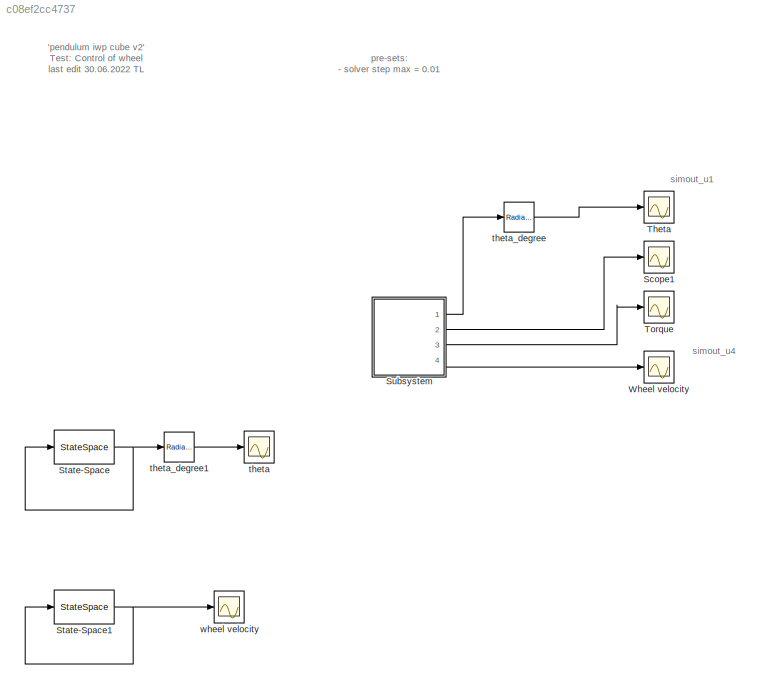
MODEL slx_c08ef2cc4737
KIND model
CONFIG AbsTol = auto
CONFIG EnableMultiTasking = on
CONFIG FixedStep = auto
CONFIG MaxStep = 0.01
CONFIG MinStep = auto
CONFIG RelTol = 1e-3
CONFIG SampleTimeConstraint = Unconstrained
CONFIG SolverName = VariableStepAuto
CONFIG StartTime = 0.0
CONFIG StopTime = 10
BLOCK [Scope] Scope1
  Commented = on
  Floating = off
  NumInputPorts = 1
  Ports = [1]
  ScopeSpecificationString = Simulink.scopes.TimeScopeBlockCfg('CurrentConfiguration', extmgr.ConfigurationSet(extmgr.Configuration('Core','General UI',true),extmgr.Configuration('Core','Source UI',true),extmgr.Configuration('Sources','WiredSimulink',true,'DataLoggingVariableName','ScopeData2'),extmgr.Configuration('Visuals','Time Domain',true,'SerializedDisplays',{struct('MinYLimReal','-0.18412','MaxYLimReal','0.16929','YLab...<+1396ch>
BLOCK [StateSpace] State-Space
  A = A-B*K
  B = B
  C = C1
  D = D
  InitialCondition = x0
  Ports = [1, 1]
BLOCK [StateSpace] State-Space1
  A = A-B*K
  B = B
  C = C2
  D = D
  InitialCondition = x0
  Ports = [1, 1]
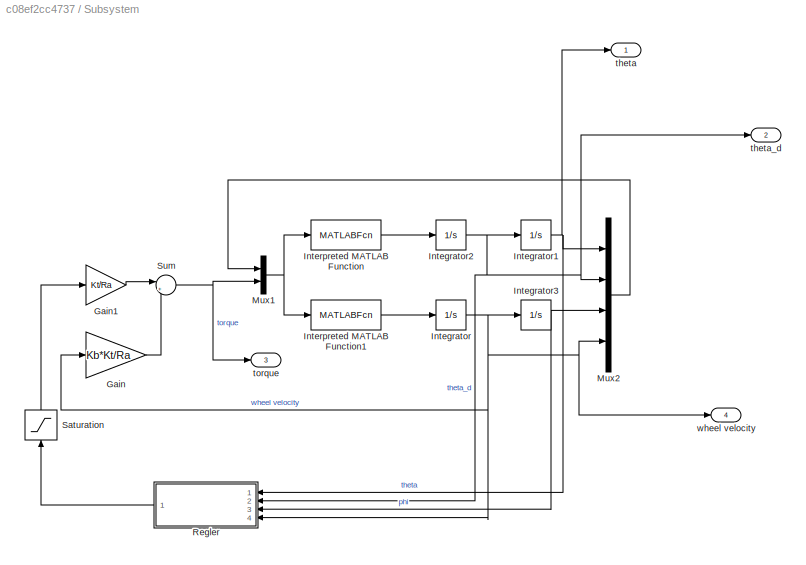
BLOCK [SubSystem] Subsystem
  Commented = on
  Ports = [0, 4]
  RequestExecContextInheritance = off
BLOCK [Gain] Subsystem/Gain
  Gain = Kb*Kt/Ra
BLOCK [Gain] Subsystem/Gain1
  Gain = Kt/Ra
BLOCK [Integrator] Subsystem/Integrator
  Ports = [1, 1]
BLOCK [Integrator] Subsystem/Integrator1
  InitialCondition = theta_0
  Ports = [1, 1]
BLOCK [Integrator] Subsystem/Integrator2
  Ports = [1, 1]
BLOCK [Integrator] Subsystem/Integrator3
  Ports = [1, 1]
BLOCK [MATLABFcn] Subsystem/Interpreted MATLAB Function
  MATLABFcn = (b*g*sin(u(1))-c1*u(2)+c2*u(4)-u(5))/(a-J2)
  NameLocation = top
  Output1D = off
  Ports = [1, 1]
BLOCK [MATLABFcn] Subsystem/Interpreted MATLAB Function1
  MATLABFcn = (a*u(5)/J2+c1*u(2)-b*g*sin(u(1))-a*c2*u(4)/J2)/(a-J2)
  NameLocation = top
  Output1D = off
  Ports = [1, 1]
BLOCK [Mux] Subsystem/Mux1
  DisplayOption = bar
  Inputs = 2
  Ports = [2, 1]
BLOCK [Mux] Subsystem/Mux2
  DisplayOption = bar
  Ports = [4, 1]
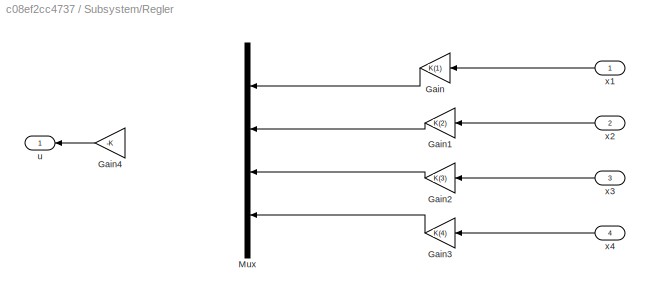
BLOCK [SubSystem] Subsystem/Regler
  NameLocation = top
  Ports = [4, 1]
  RequestExecContextInheritance = off
BLOCK [Gain] Subsystem/Regler/Gain
  Gain = K(1)
  NameLocation = top
BLOCK [Gain] Subsystem/Regler/Gain1
  Gain = K(2)
  NameLocation = top
BLOCK [Gain] Subsystem/Regler/Gain2
  Gain = K(3)
  NameLocation = top
BLOCK [Gain] Subsystem/Regler/Gain3
  Gain = K(4)
  NameLocation = top
BLOCK [Gain] Subsystem/Regler/Gain4
  Gain = -K
  Multiplication = Matrix(K*u)
  NameLocation = top
BLOCK [Mux] Subsystem/Regler/Mux
  DisplayOption = bar
  Ports = [4, 1]
BLOCK [Outport] Subsystem/Regler/u
  NameLocation = top
BLOCK [Inport] Subsystem/Regler/x1
  NameLocation = top
BLOCK [Inport] Subsystem/Regler/x2
  NameLocation = top
  Port = 2
BLOCK [Inport] Subsystem/Regler/x3
  NameLocation = top
  Port = 3
BLOCK [Inport] Subsystem/Regler/x4
  NameLocation = top
  Port = 4
BLOCK [Saturate] Subsystem/Saturation
  LowerLimit = -30
  NameLocation = right
  UpperLimit = 30
BLOCK [Sum] Subsystem/Sum
  Inputs = |+-
  Ports = [2, 1]
BLOCK [Outport] Subsystem/theta
BLOCK [Outport] Subsystem/theta_d
  Port = 2
BLOCK [Outport] Subsystem/torque
  Port = 3
BLOCK [Outport] Subsystem/wheel velocity
  Port = 4
BLOCK [Scope] Theta
  Commented = on
  Floating = off
  NumInputPorts = 1
  Ports = [1]
  ScopeSpecificationString = Simulink.scopes.TimeScopeBlockCfg('CurrentConfiguration', extmgr.ConfigurationSet(extmgr.Configuration('Core','General UI',true),extmgr.Configuration('Core','Source UI',true),extmgr.Configuration('Sources','WiredSimulink',true,'DataLoggingVariableName','simout_u1','DataLogging',true,'DataLoggingSaveFormat','StructureWithTime'),extmgr.Configuration('Visuals','Time Domain',true,'SerializedDisplays',...<+1500ch>
BLOCK [Scope] Torque
  Commented = on
  Floating = off
  NumInputPorts = 1
  Ports = [1]
  ScopeSpecificationString = Simulink.scopes.TimeScopeBlockCfg('CurrentConfiguration', extmgr.ConfigurationSet(extmgr.Configuration('Core','General UI',true),extmgr.Configuration('Core','Source UI',true),extmgr.Configuration('Sources','WiredSimulink',true,'DataLoggingVariableName','ScopeData3'),extmgr.Configuration('Visuals','Time Domain',true,'SerializedDisplays',{struct('MinYLimReal','-0.18368','MaxYLimReal','1.43001','YLab...<+1417ch>
BLOCK [Scope] Wheel velocity
  Commented = on
  Floating = off
  NumInputPorts = 1
  Ports = [1]
  ScopeSpecificationString = Simulink.scopes.TimeScopeBlockCfg('CurrentConfiguration', extmgr.ConfigurationSet(extmgr.Configuration('Core','General UI',true),extmgr.Configuration('Core','Source UI',true),extmgr.Configuration('Sources','WiredSimulink',true,'DataLoggingVariableName','simout_u4','DataLogging',true,'DataLoggingSaveFormat','StructureWithTime'),extmgr.Configuration('Visuals','Time Domain',true,'SerializedDisplays',...<+1468ch>
BLOCK [Scope] theta
  Floating = off
  NumInputPorts = 1
  Ports = [1]
  ScopeSpecificationString = Simulink.scopes.TimeScopeBlockCfg('CurrentConfiguration', extmgr.ConfigurationSet(extmgr.Configuration('Core','General UI',true),extmgr.Configuration('Core','Source UI',true),extmgr.Configuration('Sources','WiredSimulink',true,'DataLoggingVariableName','ScopeData1'),extmgr.Configuration('Visuals','Time Domain',true,'SerializedDisplays',{struct('MinYLimReal','-0.81536','MaxYLimReal','2.3124','YLabe...<+1397ch>
BLOCK [Reference] theta_degree  REF=simulink_extras/Transformations/Radians
to Degrees
  Commented = on
  Ports = [1, 1]
  SourceBlock = simulink_extras/Transformations/Radians\nto Degrees
  SourceProductBaseCode = SL
  SourceType = RadiansToDegrees
BLOCK [Reference] theta_degree1  REF=simulink_extras/Transformations/Radians
to Degrees
  Ports = [1, 1]
  SourceBlock = simulink_extras/Transformations/Radians\nto Degrees
  SourceProductBaseCode = SL
  SourceType = RadiansToDegrees
BLOCK [Scope] wheel velocity
  Floating = off
  NumInputPorts = 1
  Ports = [1]
  ScopeSpecificationString = Simulink.scopes.TimeScopeBlockCfg('CurrentConfiguration', extmgr.ConfigurationSet(extmgr.Configuration('Core','General UI',true),extmgr.Configuration('Core','Source UI',true),extmgr.Configuration('Sources','WiredSimulink',true,'DataLoggingVariableName','ScopeData2'),extmgr.Configuration('Visuals','Time Domain',true,'SerializedDisplays',{struct('MinYLimReal','-1132.60149','MaxYLimReal','1076.30006'...<+1423ch>
ANNOTATION (root): 'pendulum iwp cube v2' Test: Control of wheel last edit 30.06.2022 TL
ANNOTATION (root): pre-sets: - solver step max = 0.01
ANNOTATION (root): simout_u1
ANNOTATION (root): simout_u4
NET State-Space1:1 -> State-Space1:1, wheel velocity:1
NET State-Space:1 -> State-Space:1, theta_degree1:1
LINE Subsystem/Gain1:1 -> Subsystem/Sum:1
LINE Subsystem/Gain:1 -> Subsystem/Sum:2
NET Subsystem/Integrator1:1 -> Subsystem/Mux2:1, Subsystem/Regler:1, Subsystem/theta:1
NET Subsystem/Integrator2:1 -> Subsystem/Integrator1:1, Subsystem/Mux2:2, Subsystem/Regler:2, Subsystem/theta_d:1
NET Subsystem/Integrator3:1 -> Subsystem/Mux2:3, Subsystem/Regler:3
NET Subsystem/Integrator:1 -> Subsystem/Gain:1, Subsystem/Integrator3:1, Subsystem/Mux2:4, Subsystem/Regler:4, Subsystem/wheel velocity:1
LINE Subsystem/Interpreted MATLAB Function1:1 -> Subsystem/Integrator:1
LINE Subsystem/Interpreted MATLAB Function:1 -> Subsystem/Integrator2:1
NET Subsystem/Mux1:1 -> Subsystem/Interpreted MATLAB Function1:1, Subsystem/Interpreted MATLAB Function:1
LINE Subsystem/Mux2:1 -> Subsystem/Mux1:1
LINE Subsystem/Regler/Gain1:1 -> Subsystem/Regler/Mux:2
LINE Subsystem/Regler/Gain2:1 -> Subsystem/Regler/Mux:3
LINE Subsystem/Regler/Gain3:1 -> Subsystem/Regler/Mux:4
LINE Subsystem/Regler/Gain4:1 -> Subsystem/Regler/u:1
LINE Subsystem/Regler/Gain:1 -> Subsystem/Regler/Mux:1
LINE Subsystem/Regler/x1:1 -> Subsystem/Regler/Gain:1
LINE Subsystem/Regler/x2:1 -> Subsystem/Regler/Gain1:1
LINE Subsystem/Regler/x3:1 -> Subsystem/Regler/Gain2:1
LINE Subsystem/Regler/x4:1 -> Subsystem/Regler/Gain3:1
LINE Subsystem/Regler:1 -> Subsystem/Saturation:1
LINE Subsystem/Saturation:1 -> Subsystem/Gain1:1
NET Subsystem/Sum:1 -> Subsystem/Mux1:2, Subsystem/torque:1
LINE Subsystem:1 -> theta_degree:1
LINE Subsystem:2 -> Scope1:1
LINE Subsystem:3 -> Torque:1
LINE Subsystem:4 -> Wheel velocity:1
LINE theta_degree1:1 -> theta:1
LINE theta_degree:1 -> Theta:1
note: NET lines group one-source signal fan-out (src -> all destinations, sorted); 1:1 wires keep LINE
